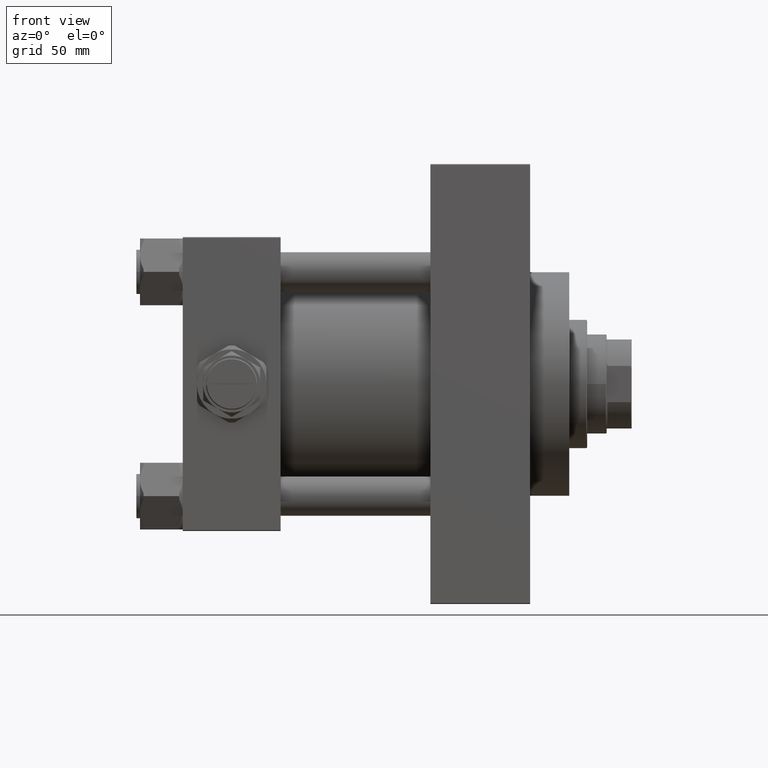
[diagram: clean part render]
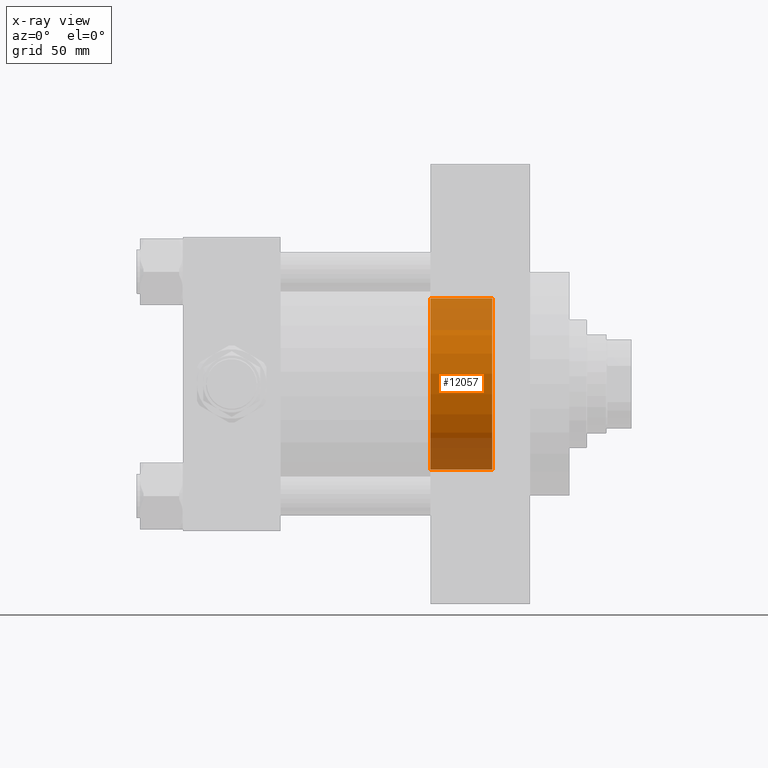
[diagram: x-ray — body ghosted, one internal face saturated and labeled with its STEP entity id]
A machine part, front view, then the same camera in x-ray: the body is ghosted and one INTERNAL B-rep face — a face not visible from any outside direction — is saturated and labeled: STEP entity #12057.
In plain terms, the highlighted cylindrical surface (partial cylindrical patch) has radius 48 mm, axis along (1, 0, 0).
Its self-contained STEP definition (entity closure, byte-faithful):
#60 = VERTEX_POINT ( 'NONE', #42104 ) ;
#532 = EDGE_CURVE ( 'NONE', #60, #20724, #17062, .T. ) ;
#1679 = VECTOR ( 'NONE', #14779, 1000.000000000000000 ) ;
#2911 = ORIENTED_EDGE ( 'NONE', *, *, #532, .T. ) ;
#5562 = DIRECTION ( 'NONE',  ( 1.000000000000000000, -0.000000000000000000, -0.000000000000000000 ) ) ;
#6522 = LINE ( 'NONE', #22034, #1679 ) ;
#7940 = CARTESIAN_POINT ( 'NONE',  ( 173.7400000000000091, 0.000000000000000000, 0.000000000000000000 ) ) ;
#11197 = DIRECTION ( 'NONE',  ( 0.000000000000000000, 0.000000000000000000, -1.000000000000000000 ) ) ;
#11447 = DIRECTION ( 'NONE',  ( 1.000000000000000000, 0.000000000000000000, 0.000000000000000000 ) ) ;
#12057 = ADVANCED_FACE ( 'NONE', ( #12571 ), #43103, .F. ) ;
#12571 = FACE_OUTER_BOUND ( 'NONE', #35872, .T. ) ;
#14779 = DIRECTION ( 'NONE',  ( 1.000000000000000000, -0.000000000000000000, -0.000000000000000000 ) ) ;
#16531 = EDGE_CURVE ( 'NONE', #45081, #60, #6522, .T. ) ;
#17062 = CIRCLE ( 'NONE', #30636, 48.00000000000000711 ) ;
#19527 = LINE ( 'NONE', #45809, #37001 ) ;
#19953 = CARTESIAN_POINT ( 'NONE',  ( 173.7400000000000091, 0.000000000000000000, -48.00000000000000711 ) ) ;
#20192 = CIRCLE ( 'NONE', #24190, 48.00000000000000711 ) ;
#20532 = EDGE_CURVE ( 'NONE', #32536, #20724, #19527, .T. ) ;
#20654 = DIRECTION ( 'NONE',  ( 0.000000000000000000, 0.000000000000000000, 1.000000000000000000 ) ) ;
#20724 = VERTEX_POINT ( 'NONE', #19953 ) ;
#22034 = CARTESIAN_POINT ( 'NONE',  ( -80.76450198781715528, 5.878304635907296578E-15, 48.00000000000000711 ) ) ;
#24190 = AXIS2_PLACEMENT_3D ( 'NONE', #40651, #35913, #20654 ) ;
#28787 = ORIENTED_EDGE ( 'NONE', *, *, #43057, .T. ) ;
#30636 = AXIS2_PLACEMENT_3D ( 'NONE', #7940, #11447, #11197 ) ;
#32536 = VERTEX_POINT ( 'NONE', #37366 ) ;
#33681 = CARTESIAN_POINT ( 'NONE',  ( 139.0000000000000000, 5.878304635907296578E-15, 48.00000000000000711 ) ) ;
#35872 = EDGE_LOOP ( 'NONE', ( #28787, #42024, #2911, #40831 ) ) ;
#35913 = DIRECTION ( 'NONE',  ( -1.000000000000000000, 0.000000000000000000, -0.000000000000000000 ) ) ;
#36331 = CARTESIAN_POINT ( 'NONE',  ( -80.76450198781715528, 0.000000000000000000, 0.000000000000000000 ) ) ;
#37001 = VECTOR ( 'NONE', #43033, 1000.000000000000000 ) ;
#37366 = CARTESIAN_POINT ( 'NONE',  ( 139.0000000000000000, 0.000000000000000000, -48.00000000000000711 ) ) ;
#37619 = AXIS2_PLACEMENT_3D ( 'NONE', #36331, #5562, #43604 ) ;
#40651 = CARTESIAN_POINT ( 'NONE',  ( 139.0000000000000000, 0.000000000000000000, 0.000000000000000000 ) ) ;
#40831 = ORIENTED_EDGE ( 'NONE', *, *, #20532, .F. ) ;
#42024 = ORIENTED_EDGE ( 'NONE', *, *, #16531, .T. ) ;
#42104 = CARTESIAN_POINT ( 'NONE',  ( 173.7400000000000091, 5.878304635907296578E-15, 48.00000000000000711 ) ) ;
#43033 = DIRECTION ( 'NONE',  ( 1.000000000000000000, -0.000000000000000000, -0.000000000000000000 ) ) ;
#43057 = EDGE_CURVE ( 'NONE', #32536, #45081, #20192, .T. ) ;
#43103 = CYLINDRICAL_SURFACE ( 'NONE', #37619, 48.00000000000000711 ) ;
#43604 = DIRECTION ( 'NONE',  ( 0.000000000000000000, 0.000000000000000000, -1.000000000000000000 ) ) ;
#45081 = VERTEX_POINT ( 'NONE', #33681 ) ;
#45809 = CARTESIAN_POINT ( 'NONE',  ( -80.76450198781715528, 0.000000000000000000, -48.00000000000000711 ) ) ;